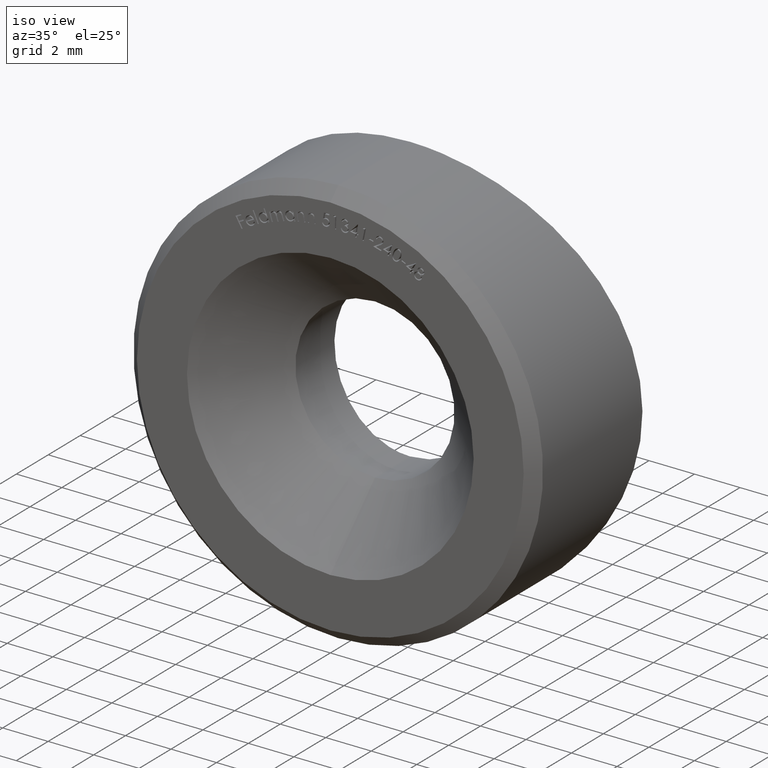
[diagram: clean part render]
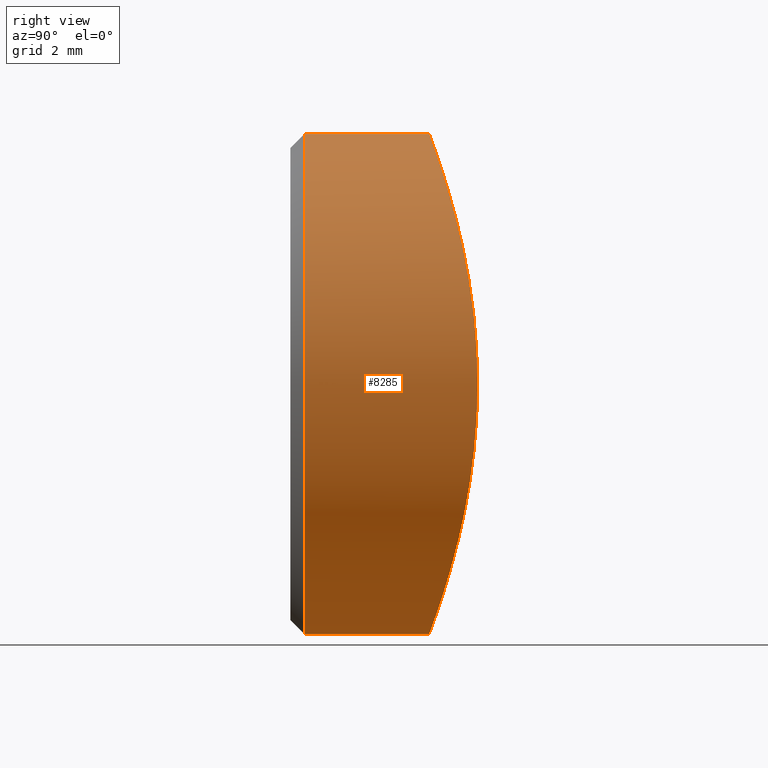
[diagram: tour spotlight — one face highlighted and labeled with its STEP entity id]
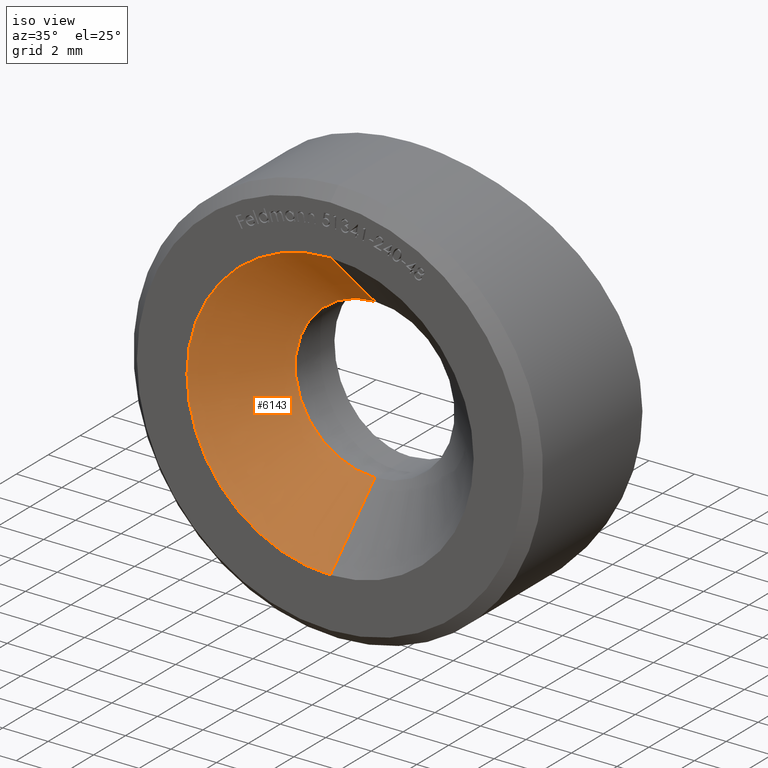
[diagram: tour spotlight — one face highlighted and labeled with its STEP entity id]
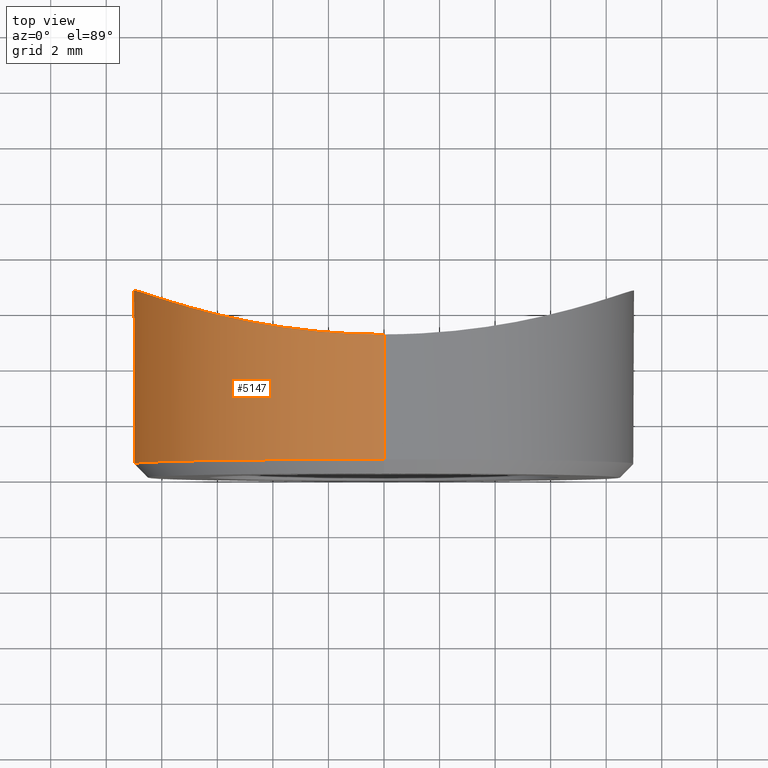
[diagram: tour spotlight — one face highlighted and labeled with its STEP entity id]
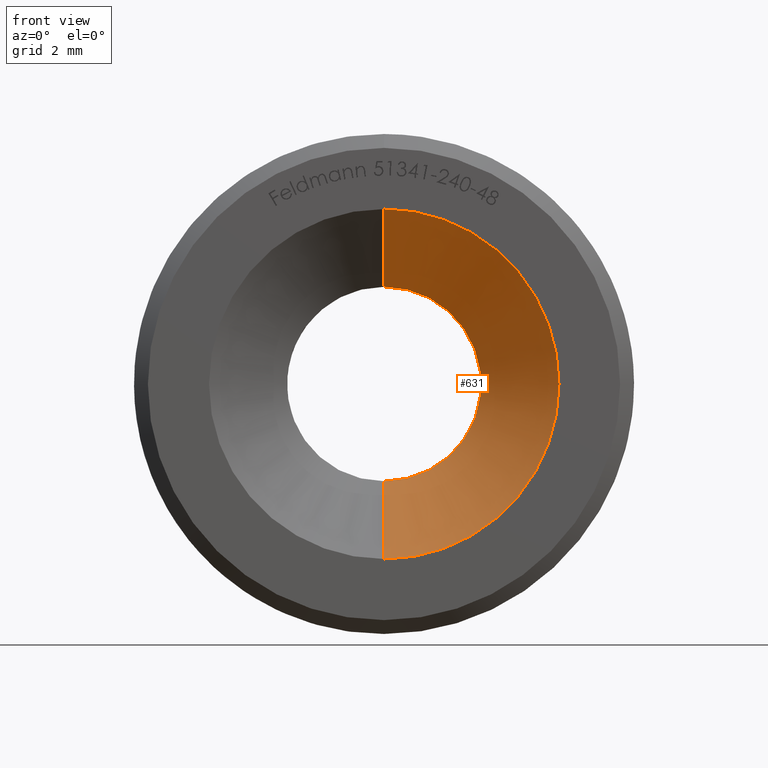
[diagram: tour spotlight — one face highlighted and labeled with its STEP entity id]
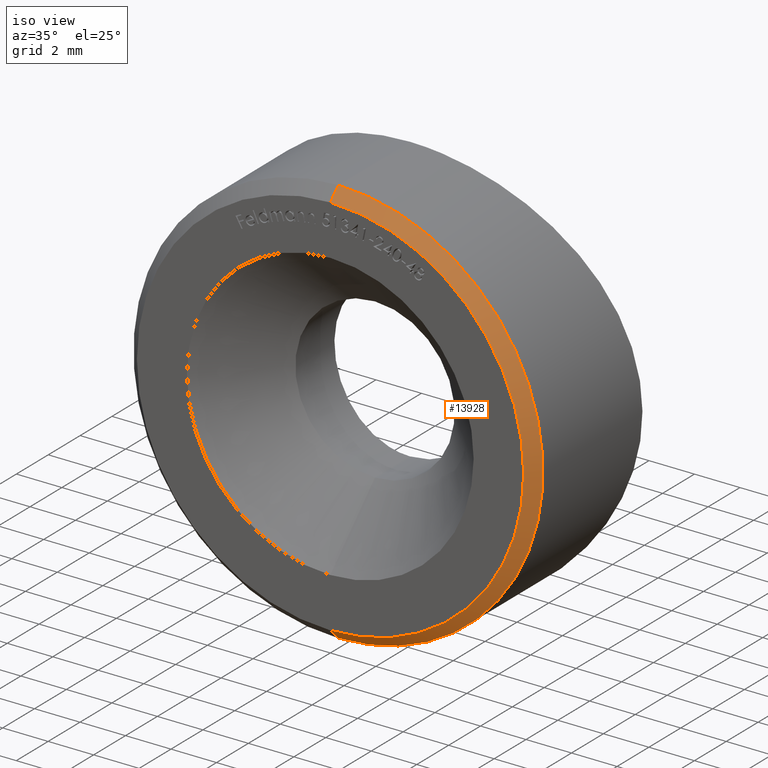
[diagram: tour spotlight — one face highlighted and labeled with its STEP entity id]
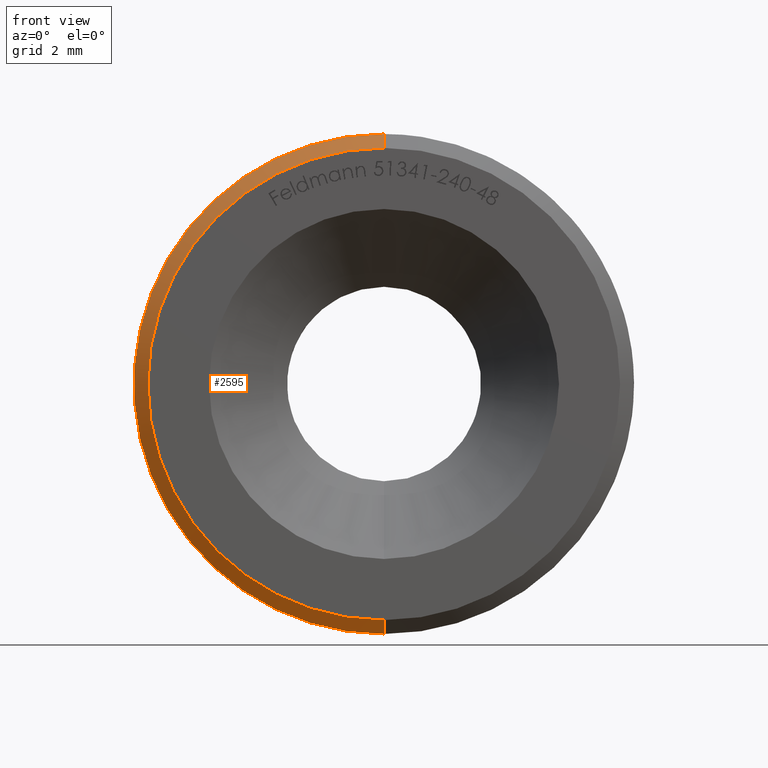
[diagram: tour spotlight — one face highlighted and labeled with its STEP entity id]
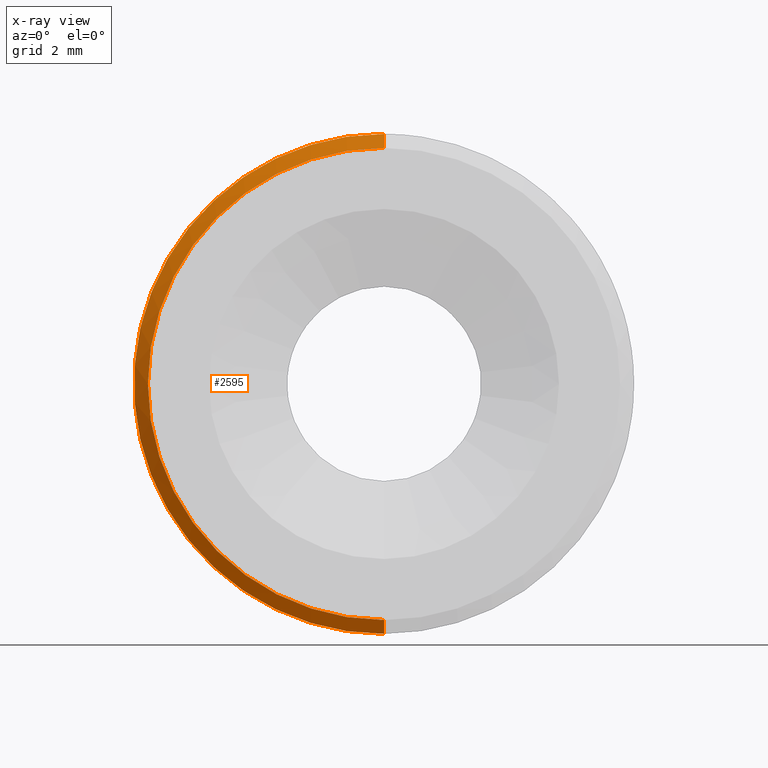
[diagram: x-ray of the same camera — body ghosted, this tour face saturated]
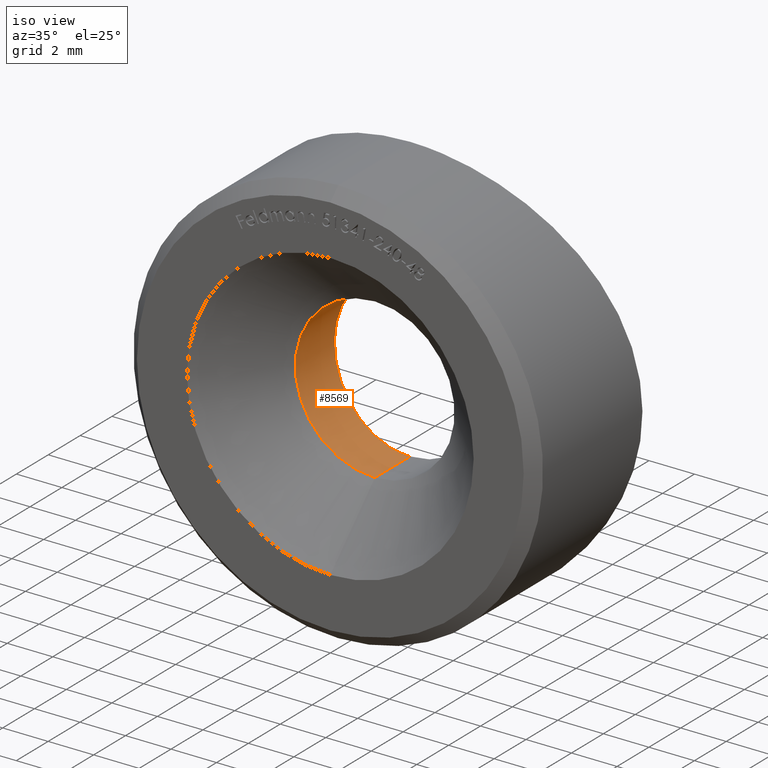
[diagram: tour spotlight — one face highlighted and labeled with its STEP entity id]
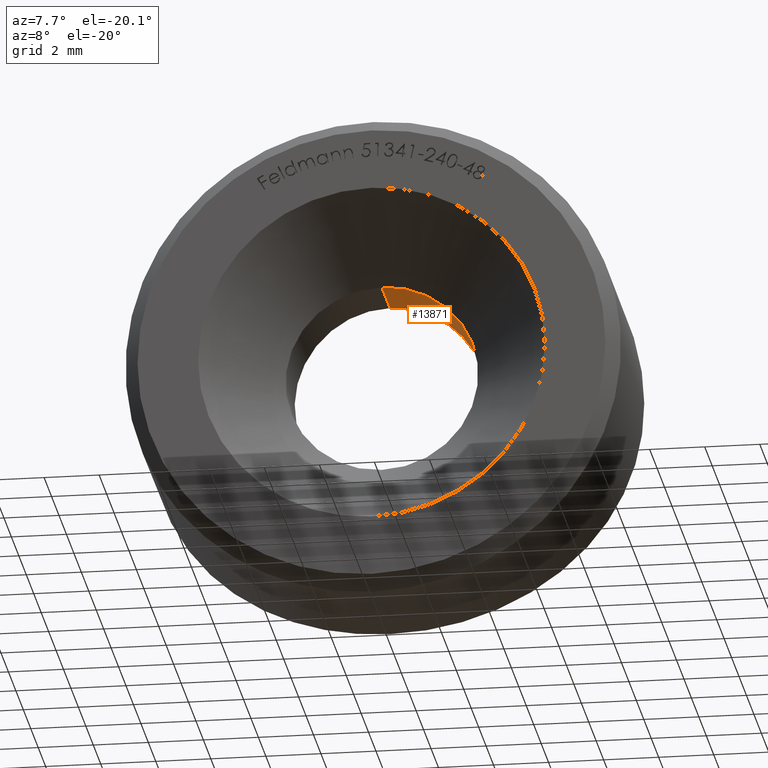
[diagram: tour spotlight — one face highlighted and labeled with its STEP entity id]
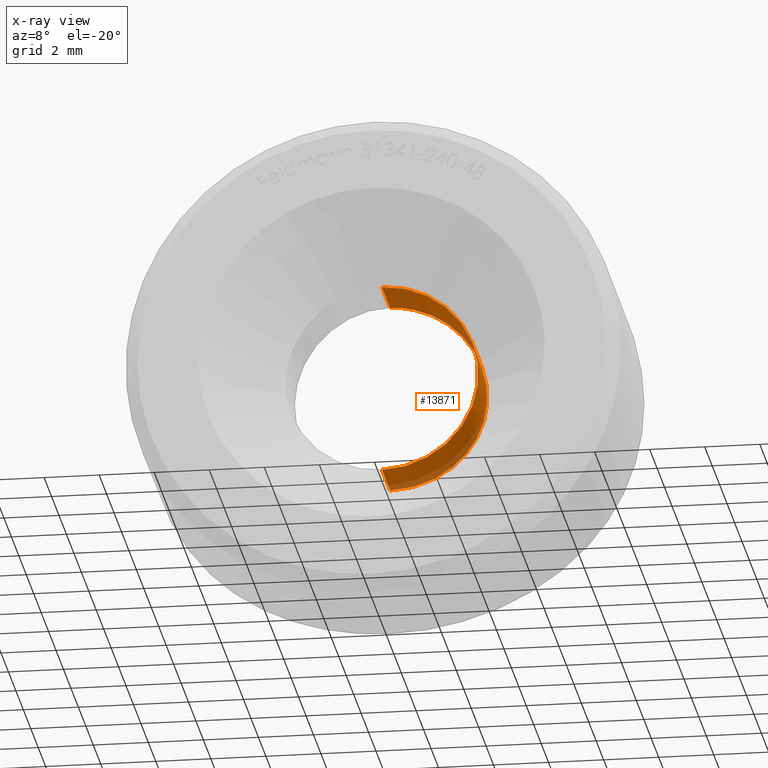
[diagram: x-ray of the same camera — body ghosted, this tour face saturated]
A machine part: a face-by-face anatomy tour. The part has 269 B-rep faces; the first image is the clean iso view, then the 8 largest visible faces are spotlighted one at a time (largest first), each with its STEP entity span.

Face 1 — right view, entity #8285. In plain terms, the highlighted cylindrical surface (partial cylindrical patch) has radius 9 mm, axis along (-0, -1, -0).
Definition (entity closure, byte-faithful):
#43 = CARTESIAN_POINT ( 'NONE',  ( 6.766301774490943721, 5.966438062128760933, 5.941660417136055194 ) ) ;
#86 = CARTESIAN_POINT ( 'NONE',  ( 1.189931978272880553, 5.022348093053088824, -8.940511629160912577 ) ) ;
#126 = CARTESIAN_POINT ( 'NONE',  ( 3.730642141973565362, 5.288323360965939024, 8.195625848962068360 ) ) ;
#136 = CARTESIAN_POINT ( 'NONE',  ( 0.000000000000000000, 12.00000000000000000, 0.000000000000000000 ) ) ;
#172 = CARTESIAN_POINT ( 'NONE',  ( 8.536001020903137615, 6.557558804517533702, 2.913676522241372080 ) ) ;
#221 = CARTESIAN_POINT ( 'NONE',  ( 5.948497826203598571, 5.740148624107844988, 6.779100985596852702 ) ) ;
#296 = VERTEX_POINT ( 'NONE', #8079 ) ;
#837 = VERTEX_POINT ( 'NONE', #9467 ) ;
#1125 = CARTESIAN_POINT ( 'NONE',  ( 2.356297262068391962, 5.108076488007558424, 8.706521532603355595 ) ) ;
#1171 = CARTESIAN_POINT ( 'NONE',  ( 4.010451670207712205, 5.328982301794197518, -8.078595244542672305 ) ) ;
#1263 = CARTESIAN_POINT ( 'NONE',  ( 7.800711955355153826, 6.292000575243805294, 4.526518712630223540 ) ) ;
#1307 = CARTESIAN_POINT ( 'NONE',  ( 8.985576648985063031, 6.733869077884507170, 0.5907930680414021918 ) ) ;
#2324 = CARTESIAN_POINT ( 'NONE',  ( 0.6004972753266772934, 5.000000000000000888, -9.000000000000001776 ) ) ;
#2371 = CARTESIAN_POINT ( 'NONE',  ( 2.918603597515133430, 5.170770147693574792, 8.533794491968329510 ) ) ;
#3112 = DIRECTION ( 'NONE',  ( -0.000000000000000000, -1.000000000000000000, -0.000000000000000000 ) ) ;
#3270 = CARTESIAN_POINT ( 'NONE',  ( 0.5913067879176026054, 5.005429957612480329, 8.985460498500561499 ) ) ;
#3310 = CARTESIAN_POINT ( 'NONE',  ( 8.081853343882659857, 6.391184537251258568, -4.003282572079447377 ) ) ;
#3318 = CARTESIAN_POINT ( 'NONE',  ( -4.568409212504892673E-16, 5.000000000000000888, -9.000000000000000000 ) ) ;
#3402 = CARTESIAN_POINT ( 'NONE',  ( 8.999669348356471588, 6.739545927265237601, -0.5981784187333814007 ) ) ;
#3439 = CARTESIAN_POINT ( 'NONE',  ( 7.313367644689345859, 6.133346466704702848, 5.253548644503456266 ) ) ;
#3735 = CARTESIAN_POINT ( 'NONE',  ( 1.102182119232617714E-15, 12.00000000000000000, 9.000000000000000000 ) ) ;
#4238 = ORIENTED_EDGE ( 'NONE', *, *, #12728, .T. ) ;
#4284 = EDGE_CURVE ( 'NONE', #9323, #296, #11903, .T. ) ;
#4338 = CARTESIAN_POINT ( 'NONE',  ( 3.194525826999539131, 5.210638449721360033, -8.419136575189154925 ) ) ;
#4482 = CARTESIAN_POINT ( 'NONE',  ( 8.926453623067843068, 6.710259828878878174, 1.186612775613984816 ) ) ;
#4532 = CARTESIAN_POINT ( 'NONE',  ( 1.479248365717241498, 5.043564033469090546, 8.882608725411273554 ) ) ;
#4908 = VERTEX_POINT ( 'NONE', #3318 ) ;
#5332 = DIRECTION ( 'NONE',  ( -0.000000000000000000, 1.000000000000000000, -0.000000000000000000 ) ) ;
#5382 = CARTESIAN_POINT ( 'NONE',  ( 0.000000000000000000, 0.5000000000000056621, 0.000000000000000000 ) ) ;
#5402 = CARTESIAN_POINT ( 'NONE',  ( 8.882333141340604143, 6.692694759381613068, 1.480380367045336376 ) ) ;
#5436 = FACE_OUTER_BOUND ( 'NONE', #6497, .T. ) ;
#5444 = CARTESIAN_POINT ( 'NONE',  ( 8.766325330730728282, 6.647156515768875451, -2.059044539219177850 ) ) ;
#5487 = CARTESIAN_POINT ( 'NONE',  ( 8.419693707027636975, 6.514946618911880094, -3.192869255986672261 ) ) ;
#5529 = CARTESIAN_POINT ( 'NONE',  ( 5.946319130245044882, 5.742351645721429421, -6.762184475230791136 ) ) ;
#5541 = DIRECTION ( 'NONE',  ( 0.000000000000000000, 0.000000000000000000, -1.000000000000000000 ) ) ;
#5580 = CARTESIAN_POINT ( 'NONE',  ( 2.058400223355762559, 5.086131967524055497, -8.766422308816089526 ) ) ;
#6472 = CARTESIAN_POINT ( 'NONE',  ( 5.493897798609819638, 5.632053668427838389, -7.134629426550527675 ) ) ;
#6497 = EDGE_LOOP ( 'NONE', ( #9907, #4238, #11561, #13808 ) ) ;
#6561 = AXIS2_PLACEMENT_3D ( 'NONE', #5382, #5332, #12826 ) ;
#6563 = CARTESIAN_POINT ( 'NONE',  ( 7.149385831907496325, 6.079933614271139319, -5.498565882711247355 ) ) ;
#6607 = CARTESIAN_POINT ( 'NONE',  ( 8.707921944808472148, 6.624232572021480081, 2.349801621985683653 ) ) ;
#6649 = CARTESIAN_POINT ( 'NONE',  ( 3.996045804814440050, 5.331437314496267454, 8.069618638804834987 ) ) ;
#7239 = LINE ( 'NONE', #3735, #13632 ) ;
#7457 = B_SPLINE_CURVE_WITH_KNOTS ( 'NONE', 3,
 ( #11688, #2324, #86, #5580, #8707, #10809, #4338, #1171, #7728, #7679, #6472, #5529, #10941, #11915, #6563, #11968, #3310, #5487, #9836, #8749, #5444, #12986, #3402, #13025, #1307, #4482, #5402, #6607, #172, #7592, #1263, #3439, #12010, #43, #13069, #221, #11873, #8796, #7545, #6649, #126, #2371, #1125, #4532, #9888, #3270, #12936, #7638 ),
 .UNSPECIFIED., .F., .F.,
 ( 4, 2, 2, 2, 2, 2, 2, 2, 2, 2, 2, 2, 2, 2, 2, 2, 2, 2, 2, 2, 2, 2, 2, 4 ),
 ( 4.434022887424222279E-19, 0.001774797310187747066, 0.002662195965281620707, 0.003549594620375494999, 0.005324391930563244883, 0.006211790585657120042, 0.007099189240750995201, 0.008873986550938742918, 0.01064878386112649324, 0.01153618251622036753, 0.01242358117131424355, 0.01419837848150199040, 0.01508577713659586469, 0.01597317579168973725, 0.01774797310187748237, 0.01952277041206523095, 0.02041016906715910351, 0.02129756772225297606, 0.02307236503244072465, 0.02395976368753459720, 0.02484716234262846976, 0.02662195965281621488, 0.02750935830791009090, 0.02839675696300396346 ),
 .UNSPECIFIED. ) ;
#7545 = CARTESIAN_POINT ( 'NONE',  ( 4.516208075080093032, 5.424566914384318927, 7.790442328424158625 ) ) ;
#7592 = CARTESIAN_POINT ( 'NONE',  ( 8.079029420259553618, 6.390145074566638606, 4.010250357733377236 ) ) ;
#7638 = CARTESIAN_POINT ( 'NONE',  ( 1.102514962508102524E-15, 5.000000000000000888, 9.000000000000000000 ) ) ;
#7679 = CARTESIAN_POINT ( 'NONE',  ( 5.256306602870696842, 5.577648519928660953, -7.311447858672172728 ) ) ;
#7728 = CARTESIAN_POINT ( 'NONE',  ( 4.525502325701673101, 5.422581634031855558, -7.801534738365574206 ) ) ;
#8079 = CARTESIAN_POINT ( 'NONE',  ( 0.000000000000000000, 0.5000000000000056621, -9.000000000000000000 ) ) ;
#8285 = ADVANCED_FACE ( 'NONE', ( #5436 ), #9115, .T. ) ;
#8707 = CARTESIAN_POINT ( 'NONE',  ( 2.345257186480904199, 5.112445985352649380, -8.694140061495708949 ) ) ;
#8749 = CARTESIAN_POINT ( 'NONE',  ( 8.692783407527976181, 6.618541706277722980, -2.350144712454297569 ) ) ;
#8770 = LINE ( 'NONE', #13830, #13833 ) ;
#8796 = CARTESIAN_POINT ( 'NONE',  ( 4.770135947871413151, 5.474483797871056545, 7.637505743970503858 ) ) ;
#8845 = EDGE_CURVE ( 'NONE', #4908, #296, #8770, .T. ) ;
#9115 = CYLINDRICAL_SURFACE ( 'NONE', #10233, 9.000000000000000000 ) ;
#9323 = VERTEX_POINT ( 'NONE', #9390 ) ;
#9390 = CARTESIAN_POINT ( 'NONE',  ( 1.102182119232617714E-15, 0.5000000000000056621, 9.000000000000000000 ) ) ;
#9467 = CARTESIAN_POINT ( 'NONE',  ( 1.102514962508102524E-15, 5.000000000000000888, 9.000000000000000000 ) ) ;
#9836 = CARTESIAN_POINT ( 'NONE',  ( 8.519525881940021250, 6.552460864977041943, -2.916391998107375372 ) ) ;
#9888 = CARTESIAN_POINT ( 'NONE',  ( 1.182199006767078675, 5.027141302126042710, 8.926956345583322516 ) ) ;
#9903 = DIRECTION ( 'NONE',  ( -0.000000000000000000, -1.000000000000000000, -0.000000000000000000 ) ) ;
#9907 = ORIENTED_EDGE ( 'NONE', *, *, #11664, .T. ) ;
#10233 = AXIS2_PLACEMENT_3D ( 'NONE', #136, #9903, #5541 ) ;
#10809 = CARTESIAN_POINT ( 'NONE',  ( 2.913642026638510796, 5.174701786663108649, -8.520504258566555578 ) ) ;
#10941 = CARTESIAN_POINT ( 'NONE',  ( 6.161984158437130432, 5.798387163505403841, -6.566161547331820003 ) ) ;
#11283 = DIRECTION ( 'NONE',  ( -0.000000000000000000, -1.000000000000000000, -0.000000000000000000 ) ) ;
#11561 = ORIENTED_EDGE ( 'NONE', *, *, #4284, .T. ) ;
#11664 = EDGE_CURVE ( 'NONE', #4908, #837, #7457, .T. ) ;
#11688 = CARTESIAN_POINT ( 'NONE',  ( -4.568409212504892673E-16, 5.000000000000000888, -9.000000000000000000 ) ) ;
#11873 = CARTESIAN_POINT ( 'NONE',  ( 5.499467987954579584, 5.629255763406552759, 7.148329570668463084 ) ) ;
#11903 = CIRCLE ( 'NONE', #6561, 9.000000000000000000 ) ;
#11915 = CARTESIAN_POINT ( 'NONE',  ( 6.778385586350903935, 5.966870957952460586, -5.949083440388699628 ) ) ;
#11968 = CARTESIAN_POINT ( 'NONE',  ( 7.805905791461426269, 6.293720434194779223, -4.518382378111074793 ) ) ;
#12010 = CARTESIAN_POINT ( 'NONE',  ( 7.139095839518596165, 6.078509055009910789, 5.488121610369887549 ) ) ;
#12728 = EDGE_CURVE ( 'NONE', #837, #9323, #7239, .T. ) ;
#12826 = DIRECTION ( 'NONE',  ( 0.000000000000000000, 0.000000000000000000, 1.000000000000000000 ) ) ;
#12936 = CARTESIAN_POINT ( 'NONE',  ( 0.2957220144155063291, 5.000000000000000888, 9.000000000000000000 ) ) ;
#12986 = CARTESIAN_POINT ( 'NONE',  ( 8.941270364255451852, 6.715832242016529285, -1.185825091691509847 ) ) ;
#13025 = CARTESIAN_POINT ( 'NONE',  ( 9.000163246037892861, 6.739744276868593786, 0.2915956014156583787 ) ) ;
#13069 = CARTESIAN_POINT ( 'NONE',  ( 6.567965725016922995, 5.909299855804041712, 6.160116506635262112 ) ) ;
#13632 = VECTOR ( 'NONE', #11283, 1000.000000000000000 ) ;
#13808 = ORIENTED_EDGE ( 'NONE', *, *, #8845, .F. ) ;
#13830 = CARTESIAN_POINT ( 'NONE',  ( 0.000000000000000000, 12.00000000000000000, -9.000000000000000000 ) ) ;
#13833 = VECTOR ( 'NONE', #3112, 1000.000000000000000 ) ;

Face 2 — iso view, entity #6143. In plain terms, the highlighted conical surface has half-angle 45 deg.
Definition (entity closure, byte-faithful):
#165 = EDGE_LOOP ( 'NONE', ( #6391, #9433, #12248, #319 ) ) ;
#319 = ORIENTED_EDGE ( 'NONE', *, *, #9780, .F. ) ;
#735 = DIRECTION ( 'NONE',  ( 8.659560562354936556E-17, -0.7071067811865473507, 0.7071067811865477948 ) ) ;
#952 = CONICAL_SURFACE ( 'NONE', #2604, 6.299999999999999822, 0.7853981633974485010 ) ;
#1234 = CARTESIAN_POINT ( 'NONE',  ( 0.000000000000000000, 2.799999999999997602, -3.500000000000000000 ) ) ;
#1496 = EDGE_CURVE ( 'NONE', #10953, #4129, #2839, .T. ) ;
#1762 = DIRECTION ( 'NONE',  ( 0.000000000000000000, 0.000000000000000000, -1.000000000000000000 ) ) ;
#2604 = AXIS2_PLACEMENT_3D ( 'NONE', #12688, #9411, #8412 ) ;
#2706 = CARTESIAN_POINT ( 'NONE',  ( 0.000000000000000000, 2.799999999999997602, 0.000000000000000000 ) ) ;
#2839 = LINE ( 'NONE', #12509, #6864 ) ;
#3629 = EDGE_CURVE ( 'NONE', #10953, #8145, #13068, .T. ) ;
#4129 = VERTEX_POINT ( 'NONE', #12546 ) ;
#4422 = CARTESIAN_POINT ( 'NONE',  ( 0.000000000000000000, -8.673617379884035472E-16, 0.000000000000000000 ) ) ;
#4583 = DIRECTION ( 'NONE',  ( 0.000000000000000000, -0.7071067811865473507, -0.7071067811865477948 ) ) ;
#4667 = AXIS2_PLACEMENT_3D ( 'NONE', #2706, #12373, #1762 ) ;
#4981 = FACE_OUTER_BOUND ( 'NONE', #165, .T. ) ;
#5201 = CARTESIAN_POINT ( 'NONE',  ( 0.000000000000000000, -8.673617379884035472E-16, -6.299999999999999822 ) ) ;
#5517 = DIRECTION ( 'NONE',  ( 0.000000000000000000, 0.000000000000000000, -1.000000000000000000 ) ) ;
#5865 = CARTESIAN_POINT ( 'NONE',  ( 0.000000000000000000, -8.673617379884035472E-16, -6.299999999999999822 ) ) ;
#6143 = ADVANCED_FACE ( 'NONE', ( #4981 ), #952, .F. ) ;
#6391 = ORIENTED_EDGE ( 'NONE', *, *, #3629, .F. ) ;
#6496 = CARTESIAN_POINT ( 'NONE',  ( 4.286263797015735609E-16, 2.799999999999997602, 3.500000000000000000 ) ) ;
#6864 = VECTOR ( 'NONE', #735, 999.9999999999998863 ) ;
#7386 = VERTEX_POINT ( 'NONE', #5201 ) ;
#7622 = EDGE_CURVE ( 'NONE', #4129, #7386, #11194, .T. ) ;
#8145 = VERTEX_POINT ( 'NONE', #1234 ) ;
#8412 = DIRECTION ( 'NONE',  ( 0.000000000000000000, 0.000000000000000000, -1.000000000000000000 ) ) ;
#9118 = VECTOR ( 'NONE', #4583, 999.9999999999998863 ) ;
#9411 = DIRECTION ( 'NONE',  ( -0.000000000000000000, -1.000000000000000000, -0.000000000000000000 ) ) ;
#9433 = ORIENTED_EDGE ( 'NONE', *, *, #1496, .T. ) ;
#9674 = AXIS2_PLACEMENT_3D ( 'NONE', #4422, #11955, #5517 ) ;
#9780 = EDGE_CURVE ( 'NONE', #8145, #7386, #11826, .T. ) ;
#10953 = VERTEX_POINT ( 'NONE', #6496 ) ;
#11194 = CIRCLE ( 'NONE', #9674, 6.299999999999999822 ) ;
#11826 = LINE ( 'NONE', #5865, #9118 ) ;
#11955 = DIRECTION ( 'NONE',  ( -0.000000000000000000, -1.000000000000000000, -0.000000000000000000 ) ) ;
#12248 = ORIENTED_EDGE ( 'NONE', *, *, #7622, .T. ) ;
#12373 = DIRECTION ( 'NONE',  ( -0.000000000000000000, -1.000000000000000000, -0.000000000000000000 ) ) ;
#12509 = CARTESIAN_POINT ( 'NONE',  ( 7.715274834628325378E-16, -8.673617379884035472E-16, 6.299999999999999822 ) ) ;
#12546 = CARTESIAN_POINT ( 'NONE',  ( 7.715274834628325378E-16, -8.673617379884035472E-16, 6.299999999999999822 ) ) ;
#12688 = CARTESIAN_POINT ( 'NONE',  ( 0.000000000000000000, -8.673617379884035472E-16, 0.000000000000000000 ) ) ;
#13068 = CIRCLE ( 'NONE', #4667, 3.500000000000000000 ) ;

Face 3 — top view, entity #5147. In plain terms, the highlighted cylindrical surface (partial cylindrical patch) has radius 9 mm, axis along (-0, -1, -0).
Definition (entity closure, byte-faithful):
#60 = CARTESIAN_POINT ( 'NONE',  ( -1.183329134015081774, 5.027190693355761297, 8.926823075102856109 ) ) ;
#88 = CIRCLE ( 'NONE', #3725, 9.000000000000000000 ) ;
#141 = CARTESIAN_POINT ( 'NONE',  ( -2.340176281273871339, 5.111969399031489836, -8.695451452460018160 ) ) ;
#189 = CARTESIAN_POINT ( 'NONE',  ( -4.521105206561896850, 5.421795849348660212, -7.803838536955937322 ) ) ;
#296 = VERTEX_POINT ( 'NONE', #8079 ) ;
#837 = VERTEX_POINT ( 'NONE', #9467 ) ;
#1054 = CARTESIAN_POINT ( 'NONE',  ( -4.003473065095126238, 5.332683468086962364, 8.065945413080921611 ) ) ;
#1140 = CARTESIAN_POINT ( 'NONE',  ( -8.941453823396274814, 6.715902483883970042, -1.185415833321648682 ) ) ;
#1189 = CARTESIAN_POINT ( 'NONE',  ( -8.536403297860468697, 6.557731683690119162, 2.911713563124727067 ) ) ;
#1497 = ORIENTED_EDGE ( 'NONE', *, *, #12728, .F. ) ;
#1942 = ORIENTED_EDGE ( 'NONE', *, *, #7304, .T. ) ;
#2114 = CARTESIAN_POINT ( 'NONE',  ( 1.102514962508102524E-15, 5.000000000000000888, 9.000000000000000000 ) ) ;
#2159 = CARTESIAN_POINT ( 'NONE',  ( -0.5914565929828755619, 5.005427612344263366, 8.985466996890860258 ) ) ;
#2253 = CARTESIAN_POINT ( 'NONE',  ( -8.692250110182662581, 6.618336176308982743, -2.352073541309767979 ) ) ;
#2291 = CARTESIAN_POINT ( 'NONE',  ( -5.248278084449464309, 5.575872905360110821, -7.317147613531339800 ) ) ;
#3112 = DIRECTION ( 'NONE',  ( -0.000000000000000000, -1.000000000000000000, -0.000000000000000000 ) ) ;
#3318 = CARTESIAN_POINT ( 'NONE',  ( -4.568409212504892673E-16, 5.000000000000000888, -9.000000000000000000 ) ) ;
#3323 = CARTESIAN_POINT ( 'NONE',  ( -8.067113009859918193, 6.386741739489055547, -4.001031466107890289 ) ) ;
#3373 = CARTESIAN_POINT ( 'NONE',  ( -4.568409212504892673E-16, 5.000000000000000888, -9.000000000000000000 ) ) ;
#3725 = AXIS2_PLACEMENT_3D ( 'NONE', #9183, #5974, #12427 ) ;
#3735 = CARTESIAN_POINT ( 'NONE',  ( 1.102182119232617714E-15, 12.00000000000000000, 9.000000000000000000 ) ) ;
#4266 = CARTESIAN_POINT ( 'NONE',  ( -8.068570073650969121, 6.387260088954036519, 3.998064512460949516 ) ) ;
#4306 = CARTESIAN_POINT ( 'NONE',  ( -3.735175235093165291, 5.289018126450486079, 8.193610612220972200 ) ) ;
#4356 = CARTESIAN_POINT ( 'NONE',  ( -8.519087633289135653, 6.552295856920835604, -2.917637369180766882 ) ) ;
#4806 = ORIENTED_EDGE ( 'NONE', *, *, #8097, .T. ) ;
#4908 = VERTEX_POINT ( 'NONE', #3318 ) ;
#5050 = DIRECTION ( 'NONE',  ( 0.000000000000000000, 0.000000000000000000, -1.000000000000000000 ) ) ;
#5147 = ADVANCED_FACE ( 'NONE', ( #7848 ), #8676, .T. ) ;
#5325 = CARTESIAN_POINT ( 'NONE',  ( -7.639986452855445087, 6.239693816090897904, 4.766062746791963178 ) ) ;
#5367 = CARTESIAN_POINT ( 'NONE',  ( -7.788572087120195775, 6.289939112235443552, -4.519370525899456759 ) ) ;
#5420 = CARTESIAN_POINT ( 'NONE',  ( -5.502058311792015211, 5.629892113178493140, 7.146212023275231751 ) ) ;
#5504 = CARTESIAN_POINT ( 'NONE',  ( -5.937721058920703676, 5.740158384107552081, -6.769781015560517368 ) ) ;
#5974 = DIRECTION ( 'NONE',  ( -0.000000000000000000, 1.000000000000000000, -0.000000000000000000 ) ) ;
#6403 = CARTESIAN_POINT ( 'NONE',  ( -8.707815035762678235, 6.624191690949310818, 2.350026375780960741 ) ) ;
#6451 = CARTESIAN_POINT ( 'NONE',  ( -6.775119179731515118, 5.965881041472392177, -5.953015199997138573 ) ) ;
#6487 = CARTESIAN_POINT ( 'NONE',  ( -7.154026142719529524, 6.081439149561167490, 5.491711789048739689 ) ) ;
#6528 = CARTESIAN_POINT ( 'NONE',  ( -5.952386718994914006, 5.741081429621911703, 6.776094972537955563 ) ) ;
#6580 = CARTESIAN_POINT ( 'NONE',  ( -2.905460920870345021, 5.173727624215006315, -8.523238693526133503 ) ) ;
#6595 = EDGE_LOOP ( 'NONE', ( #1497, #4806, #10120, #1942 ) ) ;
#6621 = CARTESIAN_POINT ( 'NONE',  ( -0.6003707521603153241, 5.000000000000000000, -8.999999999999996447 ) ) ;
#7017 = B_SPLINE_CURVE_WITH_KNOTS ( 'NONE', 3,
 ( #2114, #11845, #2159, #60, #8591, #10826, #7612, #4306, #1054, #9671, #9632, #5420, #6528, #11750, #6487, #5325, #9584, #4266, #12903, #1189, #6403, #12815, #10734, #7564, #1140, #11801, #2253, #4356, #11885, #9769, #3323, #5367, #10864, #12857, #6451, #11935, #5504, #13038, #2291, #189, #12999, #7652, #6580, #141, #9812, #10907, #6621, #3373 ),
 .UNSPECIFIED., .F., .F.,
 ( 4, 2, 2, 2, 2, 2, 2, 2, 2, 2, 2, 2, 2, 2, 2, 2, 2, 2, 2, 2, 2, 2, 2, 4 ),
 ( 0.02839675696300396346, 0.02928396864557975682, 0.03017118032815555018, 0.03194560369330713689, 0.03283281537588293025, 0.03372002705845872361, 0.03549445042361030339, 0.03726887378876188317, 0.03815608547133767653, 0.03904329715391346295, 0.04081772051906504273, 0.04259214388421662251, 0.04436656724936820229, 0.04525377893194399564, 0.04614099061451978900, 0.04702820229709558236, 0.04791541397967136878, 0.04968983734482294856, 0.05057704902739873498, 0.05146426070997452140, 0.05323868407512610812, 0.05412589575770189454, 0.05501310744027768790, 0.05678753080542926768 ),
 .UNSPECIFIED. ) ;
#7239 = LINE ( 'NONE', #3735, #13632 ) ;
#7304 = EDGE_CURVE ( 'NONE', #296, #9323, #88, .T. ) ;
#7564 = CARTESIAN_POINT ( 'NONE',  ( -8.999755737264111488, 6.739580621094140689, -0.5968263228428755118 ) ) ;
#7612 = CARTESIAN_POINT ( 'NONE',  ( -2.919431552850918266, 5.170813620244211428, 8.533702304066625999 ) ) ;
#7652 = CARTESIAN_POINT ( 'NONE',  ( -3.186881145416057048, 5.209605309870319445, -8.422076941649054405 ) ) ;
#7848 = FACE_OUTER_BOUND ( 'NONE', #6595, .T. ) ;
#8079 = CARTESIAN_POINT ( 'NONE',  ( 0.000000000000000000, 0.5000000000000056621, -9.000000000000000000 ) ) ;
#8097 = EDGE_CURVE ( 'NONE', #837, #4908, #7017, .T. ) ;
#8266 = CARTESIAN_POINT ( 'NONE',  ( 0.000000000000000000, 12.00000000000000000, 0.000000000000000000 ) ) ;
#8591 = CARTESIAN_POINT ( 'NONE',  ( -1.481043561356632399, 5.043681750137372077, 8.882288776165831123 ) ) ;
#8676 = CYLINDRICAL_SURFACE ( 'NONE', #12582, 9.000000000000000000 ) ;
#8770 = LINE ( 'NONE', #13830, #13833 ) ;
#8845 = EDGE_CURVE ( 'NONE', #4908, #296, #8770, .T. ) ;
#9183 = CARTESIAN_POINT ( 'NONE',  ( 0.000000000000000000, 0.5000000000000056621, 0.000000000000000000 ) ) ;
#9323 = VERTEX_POINT ( 'NONE', #9390 ) ;
#9390 = CARTESIAN_POINT ( 'NONE',  ( 1.102182119232617714E-15, 0.5000000000000056621, 9.000000000000000000 ) ) ;
#9467 = CARTESIAN_POINT ( 'NONE',  ( 1.102514962508102524E-15, 5.000000000000000888, 9.000000000000000000 ) ) ;
#9584 = CARTESIAN_POINT ( 'NONE',  ( -7.790598671275304810, 6.290631600272409862, 4.515851550077695009 ) ) ;
#9632 = CARTESIAN_POINT ( 'NONE',  ( -4.774876607195988498, 5.475447025243049382, 7.634513826894496979 ) ) ;
#9671 = CARTESIAN_POINT ( 'NONE',  ( -4.523802866348018092, 5.426012751000270917, 7.786043900220751546 ) ) ;
#9769 = CARTESIAN_POINT ( 'NONE',  ( -8.193174565849572488, 6.431970352948139791, -3.736042967627632549 ) ) ;
#9812 = CARTESIAN_POINT ( 'NONE',  ( -2.054615449980188302, 5.085820954257313176, -8.767274289889023464 ) ) ;
#10120 = ORIENTED_EDGE ( 'NONE', *, *, #8845, .T. ) ;
#10734 = CARTESIAN_POINT ( 'NONE',  ( -9.000242745846994907, 6.739776204047270625, 0.5894366003947584254 ) ) ;
#10826 = CARTESIAN_POINT ( 'NONE',  ( -2.356244374972195299, 5.108101347385321844, 8.706450952067763538 ) ) ;
#10864 = CARTESIAN_POINT ( 'NONE',  ( -7.635387197543335169, 6.238148970356925282, -4.773559240343062449 ) ) ;
#10907 = CARTESIAN_POINT ( 'NONE',  ( -1.189229276166026805, 5.022363047738294561, -8.940464541314122826 ) ) ;
#11283 = DIRECTION ( 'NONE',  ( -0.000000000000000000, -1.000000000000000000, -0.000000000000000000 ) ) ;
#11750 = CARTESIAN_POINT ( 'NONE',  ( -6.784134906272424992, 5.968457992174998061, 5.943221710723668672 ) ) ;
#11801 = CARTESIAN_POINT ( 'NONE',  ( -8.765789913851866899, 6.646947226079618964, -2.061462825196511250 ) ) ;
#11845 = CARTESIAN_POINT ( 'NONE',  ( -0.2956597065797095802, 5.000000000000000888, 9.000000000000000000 ) ) ;
#11885 = CARTESIAN_POINT ( 'NONE',  ( -8.419161607425420968, 6.514746558987560832, -3.194345684251792772 ) ) ;
#11935 = CARTESIAN_POINT ( 'NONE',  ( -6.155921192607373804, 5.796779403771975758, -6.571894075390146028 ) ) ;
#12427 = DIRECTION ( 'NONE',  ( 0.000000000000000000, 0.000000000000000000, 1.000000000000000000 ) ) ;
#12582 = AXIS2_PLACEMENT_3D ( 'NONE', #8266, #12636, #5050 ) ;
#12636 = DIRECTION ( 'NONE',  ( -0.000000000000000000, -1.000000000000000000, -0.000000000000000000 ) ) ;
#12728 = EDGE_CURVE ( 'NONE', #837, #9323, #7239, .T. ) ;
#12815 = CARTESIAN_POINT ( 'NONE',  ( -8.940213877409806997, 6.715413788096719294, 1.192158752050187065 ) ) ;
#12857 = CARTESIAN_POINT ( 'NONE',  ( -7.144943962554036965, 6.078578352953130981, -5.503980167284034053 ) ) ;
#12903 = CARTESIAN_POINT ( 'NONE',  ( -8.196428865278479137, 6.433142358781325676, 3.729023751705212053 ) ) ;
#12999 = CARTESIAN_POINT ( 'NONE',  ( -4.006517972124378879, 5.328263053340628552, -8.080728898020559825 ) ) ;
#13038 = CARTESIAN_POINT ( 'NONE',  ( -5.483159368082304752, 5.629537011382375056, -7.142928651218999114 ) ) ;
#13632 = VECTOR ( 'NONE', #11283, 1000.000000000000000 ) ;
#13830 = CARTESIAN_POINT ( 'NONE',  ( 0.000000000000000000, 12.00000000000000000, -9.000000000000000000 ) ) ;
#13833 = VECTOR ( 'NONE', #3112, 1000.000000000000000 ) ;

Face 4 — front view, entity #631. In plain terms, the highlighted conical surface has half-angle 45 deg.
Definition (entity closure, byte-faithful):
#349 = CIRCLE ( 'NONE', #1986, 6.299999999999999822 ) ;
#631 = ADVANCED_FACE ( 'NONE', ( #11612 ), #5891, .F. ) ;
#735 = DIRECTION ( 'NONE',  ( 8.659560562354936556E-17, -0.7071067811865473507, 0.7071067811865477948 ) ) ;
#1118 = AXIS2_PLACEMENT_3D ( 'NONE', #11281, #12288, #3813 ) ;
#1234 = CARTESIAN_POINT ( 'NONE',  ( 0.000000000000000000, 2.799999999999997602, -3.500000000000000000 ) ) ;
#1496 = EDGE_CURVE ( 'NONE', #10953, #4129, #2839, .T. ) ;
#1959 = AXIS2_PLACEMENT_3D ( 'NONE', #2557, #10026, #3578 ) ;
#1986 = AXIS2_PLACEMENT_3D ( 'NONE', #9337, #9481, #10503 ) ;
#2238 = CIRCLE ( 'NONE', #1959, 3.500000000000000000 ) ;
#2315 = ORIENTED_EDGE ( 'NONE', *, *, #9780, .T. ) ;
#2557 = CARTESIAN_POINT ( 'NONE',  ( 0.000000000000000000, 2.799999999999997602, 0.000000000000000000 ) ) ;
#2839 = LINE ( 'NONE', #12509, #6864 ) ;
#3578 = DIRECTION ( 'NONE',  ( 0.000000000000000000, 0.000000000000000000, -1.000000000000000000 ) ) ;
#3813 = DIRECTION ( 'NONE',  ( 0.000000000000000000, 0.000000000000000000, -1.000000000000000000 ) ) ;
#4129 = VERTEX_POINT ( 'NONE', #12546 ) ;
#4583 = DIRECTION ( 'NONE',  ( 0.000000000000000000, -0.7071067811865473507, -0.7071067811865477948 ) ) ;
#5201 = CARTESIAN_POINT ( 'NONE',  ( 0.000000000000000000, -8.673617379884035472E-16, -6.299999999999999822 ) ) ;
#5865 = CARTESIAN_POINT ( 'NONE',  ( 0.000000000000000000, -8.673617379884035472E-16, -6.299999999999999822 ) ) ;
#5891 = CONICAL_SURFACE ( 'NONE', #1118, 6.299999999999999822, 0.7853981633974485010 ) ;
#6060 = EDGE_LOOP ( 'NONE', ( #7731, #8771, #2315, #10999 ) ) ;
#6496 = CARTESIAN_POINT ( 'NONE',  ( 4.286263797015735609E-16, 2.799999999999997602, 3.500000000000000000 ) ) ;
#6864 = VECTOR ( 'NONE', #735, 999.9999999999998863 ) ;
#7386 = VERTEX_POINT ( 'NONE', #5201 ) ;
#7731 = ORIENTED_EDGE ( 'NONE', *, *, #1496, .F. ) ;
#8145 = VERTEX_POINT ( 'NONE', #1234 ) ;
#8771 = ORIENTED_EDGE ( 'NONE', *, *, #9914, .F. ) ;
#9118 = VECTOR ( 'NONE', #4583, 999.9999999999998863 ) ;
#9337 = CARTESIAN_POINT ( 'NONE',  ( 0.000000000000000000, -8.673617379884035472E-16, 0.000000000000000000 ) ) ;
#9481 = DIRECTION ( 'NONE',  ( -0.000000000000000000, -1.000000000000000000, -0.000000000000000000 ) ) ;
#9780 = EDGE_CURVE ( 'NONE', #8145, #7386, #11826, .T. ) ;
#9914 = EDGE_CURVE ( 'NONE', #8145, #10953, #2238, .T. ) ;
#10026 = DIRECTION ( 'NONE',  ( -0.000000000000000000, -1.000000000000000000, -0.000000000000000000 ) ) ;
#10503 = DIRECTION ( 'NONE',  ( 0.000000000000000000, 0.000000000000000000, -1.000000000000000000 ) ) ;
#10953 = VERTEX_POINT ( 'NONE', #6496 ) ;
#10999 = ORIENTED_EDGE ( 'NONE', *, *, #12539, .T. ) ;
#11281 = CARTESIAN_POINT ( 'NONE',  ( 0.000000000000000000, -8.673617379884035472E-16, 0.000000000000000000 ) ) ;
#11612 = FACE_OUTER_BOUND ( 'NONE', #6060, .T. ) ;
#11826 = LINE ( 'NONE', #5865, #9118 ) ;
#12288 = DIRECTION ( 'NONE',  ( -0.000000000000000000, -1.000000000000000000, -0.000000000000000000 ) ) ;
#12509 = CARTESIAN_POINT ( 'NONE',  ( 7.715274834628325378E-16, -8.673617379884035472E-16, 6.299999999999999822 ) ) ;
#12539 = EDGE_CURVE ( 'NONE', #7386, #4129, #349, .T. ) ;
#12546 = CARTESIAN_POINT ( 'NONE',  ( 7.715274834628325378E-16, -8.673617379884035472E-16, 6.299999999999999822 ) ) ;

Face 5 — iso view, entity #13928. In plain terms, the highlighted conical surface has half-angle 45 deg.
Definition (entity closure, byte-faithful):
#296 = VERTEX_POINT ( 'NONE', #8079 ) ;
#1518 = VECTOR ( 'NONE', #10128, 1000.000000000000000 ) ;
#1658 = VECTOR ( 'NONE', #12028, 1000.000000000000000 ) ;
#1747 = EDGE_LOOP ( 'NONE', ( #6892, #3661, #11448, #6776 ) ) ;
#2679 = FACE_OUTER_BOUND ( 'NONE', #1747, .T. ) ;
#2685 = EDGE_CURVE ( 'NONE', #12397, #9323, #8701, .T. ) ;
#3616 = DIRECTION ( 'NONE',  ( -0.000000000000000000, 1.000000000000000000, -0.000000000000000000 ) ) ;
#3661 = ORIENTED_EDGE ( 'NONE', *, *, #13105, .T. ) ;
#3825 = CARTESIAN_POINT ( 'NONE',  ( 1.071565949253933532E-15, 0.000000000000000000, -8.499999999999991118 ) ) ;
#4284 = EDGE_CURVE ( 'NONE', #9323, #296, #11903, .T. ) ;
#4351 = LINE ( 'NONE', #7766, #1518 ) ;
#4518 = CONICAL_SURFACE ( 'NONE', #6313, 9.000000000000000000, 0.7853981633974500554 ) ;
#4778 = EDGE_CURVE ( 'NONE', #10218, #12397, #8347, .T. ) ;
#5332 = DIRECTION ( 'NONE',  ( -0.000000000000000000, 1.000000000000000000, -0.000000000000000000 ) ) ;
#5382 = CARTESIAN_POINT ( 'NONE',  ( 0.000000000000000000, 0.5000000000000056621, 0.000000000000000000 ) ) ;
#6313 = AXIS2_PLACEMENT_3D ( 'NONE', #10078, #3616, #11077 ) ;
#6344 = DIRECTION ( 'NONE',  ( -0.000000000000000000, -1.000000000000000000, -0.000000000000000000 ) ) ;
#6395 = CARTESIAN_POINT ( 'NONE',  ( 0.000000000000000000, 0.000000000000000000, 0.000000000000000000 ) ) ;
#6561 = AXIS2_PLACEMENT_3D ( 'NONE', #5382, #5332, #12826 ) ;
#6776 = ORIENTED_EDGE ( 'NONE', *, *, #2685, .F. ) ;
#6892 = ORIENTED_EDGE ( 'NONE', *, *, #4778, .F. ) ;
#7420 = DIRECTION ( 'NONE',  ( 0.000000000000000000, 0.000000000000000000, 1.000000000000000000 ) ) ;
#7766 = CARTESIAN_POINT ( 'NONE',  ( 1.102182119232617714E-15, 0.5000000000000056621, -9.000000000000000000 ) ) ;
#8079 = CARTESIAN_POINT ( 'NONE',  ( 0.000000000000000000, 0.5000000000000056621, -9.000000000000000000 ) ) ;
#8347 = CIRCLE ( 'NONE', #10980, 8.499999999999991118 ) ;
#8701 = LINE ( 'NONE', #9814, #1658 ) ;
#9015 = CARTESIAN_POINT ( 'NONE',  ( 0.000000000000000000, 0.000000000000000000, 8.499999999999991118 ) ) ;
#9323 = VERTEX_POINT ( 'NONE', #9390 ) ;
#9390 = CARTESIAN_POINT ( 'NONE',  ( 1.102182119232617714E-15, 0.5000000000000056621, 9.000000000000000000 ) ) ;
#9814 = CARTESIAN_POINT ( 'NONE',  ( 0.000000000000000000, 0.5000000000000056621, 9.000000000000000000 ) ) ;
#10078 = CARTESIAN_POINT ( 'NONE',  ( 0.000000000000000000, 0.5000000000000056621, 0.000000000000000000 ) ) ;
#10128 = DIRECTION ( 'NONE',  ( 8.659560562354948882E-17, 0.7071067811865463515, -0.7071067811865487940 ) ) ;
#10218 = VERTEX_POINT ( 'NONE', #3825 ) ;
#10980 = AXIS2_PLACEMENT_3D ( 'NONE', #6395, #6344, #7420 ) ;
#11077 = DIRECTION ( 'NONE',  ( 0.000000000000000000, 0.000000000000000000, 1.000000000000000000 ) ) ;
#11448 = ORIENTED_EDGE ( 'NONE', *, *, #4284, .F. ) ;
#11903 = CIRCLE ( 'NONE', #6561, 9.000000000000000000 ) ;
#12028 = DIRECTION ( 'NONE',  ( 0.000000000000000000, 0.7071067811865463515, 0.7071067811865487940 ) ) ;
#12397 = VERTEX_POINT ( 'NONE', #9015 ) ;
#12826 = DIRECTION ( 'NONE',  ( 0.000000000000000000, 0.000000000000000000, 1.000000000000000000 ) ) ;
#13105 = EDGE_CURVE ( 'NONE', #10218, #296, #4351, .T. ) ;
#13928 = ADVANCED_FACE ( 'NONE', ( #2679 ), #4518, .T. ) ;

Face 6 — front view, entity #2595. An x-ray twin of the same camera follows (body ghosted, this face saturated) — the face is partly hidden behind the body. In plain terms, the highlighted conical surface has half-angle 45 deg.
Definition (entity closure, byte-faithful):
#88 = CIRCLE ( 'NONE', #3725, 9.000000000000000000 ) ;
#150 = ORIENTED_EDGE ( 'NONE', *, *, #7304, .F. ) ;
#202 = CIRCLE ( 'NONE', #5035, 8.499999999999991118 ) ;
#296 = VERTEX_POINT ( 'NONE', #8079 ) ;
#1102 = DIRECTION ( 'NONE',  ( -0.000000000000000000, 1.000000000000000000, -0.000000000000000000 ) ) ;
#1518 = VECTOR ( 'NONE', #10128, 1000.000000000000000 ) ;
#1658 = VECTOR ( 'NONE', #12028, 1000.000000000000000 ) ;
#2222 = DIRECTION ( 'NONE',  ( -0.000000000000000000, -1.000000000000000000, -0.000000000000000000 ) ) ;
#2264 = CARTESIAN_POINT ( 'NONE',  ( 0.000000000000000000, 0.000000000000000000, 0.000000000000000000 ) ) ;
#2595 = ADVANCED_FACE ( 'NONE', ( #13434 ), #3480, .T. ) ;
#2685 = EDGE_CURVE ( 'NONE', #12397, #9323, #8701, .T. ) ;
#3295 = DIRECTION ( 'NONE',  ( 0.000000000000000000, 0.000000000000000000, 1.000000000000000000 ) ) ;
#3480 = CONICAL_SURFACE ( 'NONE', #8786, 9.000000000000000000, 0.7853981633974500554 ) ;
#3725 = AXIS2_PLACEMENT_3D ( 'NONE', #9183, #5974, #12427 ) ;
#3825 = CARTESIAN_POINT ( 'NONE',  ( 1.071565949253933532E-15, 0.000000000000000000, -8.499999999999991118 ) ) ;
#4092 = CARTESIAN_POINT ( 'NONE',  ( 0.000000000000000000, 0.5000000000000056621, 0.000000000000000000 ) ) ;
#4351 = LINE ( 'NONE', #7766, #1518 ) ;
#4566 = ORIENTED_EDGE ( 'NONE', *, *, #10911, .F. ) ;
#5035 = AXIS2_PLACEMENT_3D ( 'NONE', #2264, #2222, #3295 ) ;
#5086 = ORIENTED_EDGE ( 'NONE', *, *, #2685, .T. ) ;
#5361 = ORIENTED_EDGE ( 'NONE', *, *, #13105, .F. ) ;
#5974 = DIRECTION ( 'NONE',  ( -0.000000000000000000, 1.000000000000000000, -0.000000000000000000 ) ) ;
#6309 = DIRECTION ( 'NONE',  ( 0.000000000000000000, 0.000000000000000000, 1.000000000000000000 ) ) ;
#7304 = EDGE_CURVE ( 'NONE', #296, #9323, #88, .T. ) ;
#7766 = CARTESIAN_POINT ( 'NONE',  ( 1.102182119232617714E-15, 0.5000000000000056621, -9.000000000000000000 ) ) ;
#8079 = CARTESIAN_POINT ( 'NONE',  ( 0.000000000000000000, 0.5000000000000056621, -9.000000000000000000 ) ) ;
#8701 = LINE ( 'NONE', #9814, #1658 ) ;
#8786 = AXIS2_PLACEMENT_3D ( 'NONE', #4092, #1102, #6309 ) ;
#9015 = CARTESIAN_POINT ( 'NONE',  ( 0.000000000000000000, 0.000000000000000000, 8.499999999999991118 ) ) ;
#9183 = CARTESIAN_POINT ( 'NONE',  ( 0.000000000000000000, 0.5000000000000056621, 0.000000000000000000 ) ) ;
#9323 = VERTEX_POINT ( 'NONE', #9390 ) ;
#9390 = CARTESIAN_POINT ( 'NONE',  ( 1.102182119232617714E-15, 0.5000000000000056621, 9.000000000000000000 ) ) ;
#9814 = CARTESIAN_POINT ( 'NONE',  ( 0.000000000000000000, 0.5000000000000056621, 9.000000000000000000 ) ) ;
#10128 = DIRECTION ( 'NONE',  ( 8.659560562354948882E-17, 0.7071067811865463515, -0.7071067811865487940 ) ) ;
#10218 = VERTEX_POINT ( 'NONE', #3825 ) ;
#10911 = EDGE_CURVE ( 'NONE', #12397, #10218, #202, .T. ) ;
#11728 = EDGE_LOOP ( 'NONE', ( #5361, #4566, #5086, #150 ) ) ;
#12028 = DIRECTION ( 'NONE',  ( 0.000000000000000000, 0.7071067811865463515, 0.7071067811865487940 ) ) ;
#12397 = VERTEX_POINT ( 'NONE', #9015 ) ;
#12427 = DIRECTION ( 'NONE',  ( 0.000000000000000000, 0.000000000000000000, 1.000000000000000000 ) ) ;
#13105 = EDGE_CURVE ( 'NONE', #10218, #296, #4351, .T. ) ;
#13434 = FACE_OUTER_BOUND ( 'NONE', #11728, .T. ) ;

Face 7 — iso view, entity #8569. In plain terms, the highlighted cylindrical surface (partial cylindrical patch) has radius 3.5 mm, axis along (-0, -1, -0).
Definition (entity closure, byte-faithful):
#120 = CARTESIAN_POINT ( 'NONE',  ( -0.4603299311164539831, 5.003327986030855712, -3.477250862275100385 ) ) ;
#792 = CARTESIAN_POINT ( 'NONE',  ( -3.476909055870580190, 5.251555687113864224, 0.4616831499564744146 ) ) ;
#1234 = CARTESIAN_POINT ( 'NONE',  ( 0.000000000000000000, 2.799999999999997602, -3.500000000000000000 ) ) ;
#1403 = CARTESIAN_POINT ( 'NONE',  ( 0.000000000000000000, 7.343232134145595502, 0.000000000000000000 ) ) ;
#1762 = DIRECTION ( 'NONE',  ( 0.000000000000000000, 0.000000000000000000, -1.000000000000000000 ) ) ;
#1917 = CARTESIAN_POINT ( 'NONE',  ( -2.135831173352805923, 5.093868800820132492, 2.782266548898225000 ) ) ;
#1957 = CARTESIAN_POINT ( 'NONE',  ( -1.128704897490054426, 5.025468424291112512, 3.320842855448582487 ) ) ;
#2003 = CARTESIAN_POINT ( 'NONE',  ( -0.2285261088629246262, 5.000000000000000888, 3.500000000000000444 ) ) ;
#2293 = VERTEX_POINT ( 'NONE', #7808 ) ;
#2359 = EDGE_LOOP ( 'NONE', ( #6695, #3483, #2734, #3647 ) ) ;
#2706 = CARTESIAN_POINT ( 'NONE',  ( 0.000000000000000000, 2.799999999999997602, 0.000000000000000000 ) ) ;
#2734 = ORIENTED_EDGE ( 'NONE', *, *, #3629, .T. ) ;
#2860 = VECTOR ( 'NONE', #10019, 1000.000000000000000 ) ;
#2946 = CARTESIAN_POINT ( 'NONE',  ( -3.388832076013782224, 5.238907855149157022, -0.9043939976694624905 ) ) ;
#3088 = CARTESIAN_POINT ( 'NONE',  ( -3.320094244583112975, 5.229143562476840756, 1.131214714858994830 ) ) ;
#3483 = ORIENTED_EDGE ( 'NONE', *, *, #12678, .T. ) ;
#3528 = DIRECTION ( 'NONE',  ( 0.000000000000000000, 0.000000000000000000, -1.000000000000000000 ) ) ;
#3629 = EDGE_CURVE ( 'NONE', #10953, #8145, #13068, .T. ) ;
#3647 = ORIENTED_EDGE ( 'NONE', *, *, #13018, .F. ) ;
#4025 = VERTEX_POINT ( 'NONE', #6736 ) ;
#4155 = CARTESIAN_POINT ( 'NONE',  ( -2.315533866378741479, 5.110719493099621147, -2.634431860320952445 ) ) ;
#4248 = CARTESIAN_POINT ( 'NONE',  ( -1.133468439522224314, 5.025693568496181207, -3.319213661213493705 ) ) ;
#4667 = AXIS2_PLACEMENT_3D ( 'NONE', #2706, #12373, #1762 ) ;
#4760 = FACE_OUTER_BOUND ( 'NONE', #2359, .T. ) ;
#4973 = CARTESIAN_POINT ( 'NONE',  ( 4.286262981819871158E-16, 5.000000000000000000, 3.500000000000000000 ) ) ;
#5163 = CARTESIAN_POINT ( 'NONE',  ( -3.038803846049676682, 5.191608674780012755, -1.751568782366085264 ) ) ;
#5209 = CARTESIAN_POINT ( 'NONE',  ( -2.311854750951000348, 5.110362832900284147, 2.637681274921313435 ) ) ;
#5259 = CARTESIAN_POINT ( 'NONE',  ( -1.753810671950249089, 5.063004105946003364, 3.037586225465392253 ) ) ;
#5968 = B_SPLINE_CURVE_WITH_KNOTS ( 'NONE', 3,
 ( #4973, #2003, #8328, #9423, #1957, #9471, #5259, #1917, #5209, #8286, #9513, #12697, #6156, #3088, #7315, #792, #9369, #11595, #12616, #2946, #10490, #6192, #5163, #7404, #10629, #4155, #11683, #13848, #8240, #4248, #10844, #120, #7454, #9695 ),
 .UNSPECIFIED., .F., .F.,
 ( 4, 2, 2, 2, 2, 2, 2, 2, 2, 2, 2, 2, 2, 2, 2, 2, 4 ),
 ( 0.01095702383128339258, 0.01164167073508192742, 0.01232631763888046225, 0.01301096454267899709, 0.01369561144647753193, 0.01438025835027606676, 0.01506490525407460160, 0.01574955215787313470, 0.01643419906167166780, 0.01711884596547020437, 0.01780349286926873748, 0.01848813977306727405, 0.01917278667686580715, 0.01985743358066434372, 0.02054208048446287682, 0.02122672738826140992, 0.02191137429205994303 ),
 .UNSPECIFIED. ) ;
#6156 = CARTESIAN_POINT ( 'NONE',  ( -3.143946244771594234, 5.205355494234339631, 1.555080233947438551 ) ) ;
#6192 = CARTESIAN_POINT ( 'NONE',  ( -3.146142497814817141, 5.205645462445884775, -1.550586633749287957 ) ) ;
#6496 = CARTESIAN_POINT ( 'NONE',  ( 4.286263797015735609E-16, 2.799999999999997602, 3.500000000000000000 ) ) ;
#6695 = ORIENTED_EDGE ( 'NONE', *, *, #8490, .F. ) ;
#6736 = CARTESIAN_POINT ( 'NONE',  ( 1.686671655971331483E-16, 5.000000000000000000, -3.500000000000000000 ) ) ;
#6737 = CARTESIAN_POINT ( 'NONE',  ( 0.000000000000000000, 7.343232134145595502, -3.500000000000000000 ) ) ;
#7226 = LINE ( 'NONE', #6737, #2860 ) ;
#7315 = CARTESIAN_POINT ( 'NONE',  ( -3.387555569901735453, 5.238726415773201417, 0.9091287997727862669 ) ) ;
#7404 = CARTESIAN_POINT ( 'NONE',  ( -2.784984259324568612, 5.160779371091333445, -2.132178390623097108 ) ) ;
#7454 = CARTESIAN_POINT ( 'NONE',  ( -0.2315248281557369392, 5.000000000000000888, -3.500000000000001776 ) ) ;
#7808 = CARTESIAN_POINT ( 'NONE',  ( 4.286262981819871158E-16, 5.000000000000000000, 3.500000000000000000 ) ) ;
#8145 = VERTEX_POINT ( 'NONE', #1234 ) ;
#8240 = CARTESIAN_POINT ( 'NONE',  ( -1.554296094761108860, 5.049147833441660183, -3.144215908933354342 ) ) ;
#8286 = CARTESIAN_POINT ( 'NONE',  ( -2.634663576682949593, 5.143597200892489063, 2.315293228786680313 ) ) ;
#8328 = CARTESIAN_POINT ( 'NONE',  ( -0.4558686915963489072, 5.003243307760670611, 3.477834970878081577 ) ) ;
#8490 = EDGE_CURVE ( 'NONE', #2293, #4025, #5968, .T. ) ;
#8569 = ADVANCED_FACE ( 'NONE', ( #4760 ), #9458, .F. ) ;
#8714 = DIRECTION ( 'NONE',  ( -0.000000000000000000, -1.000000000000000000, -0.000000000000000000 ) ) ;
#9369 = CARTESIAN_POINT ( 'NONE',  ( -3.499844996247400086, 5.254946431812757446, 0.2336637624263563362 ) ) ;
#9423 = CARTESIAN_POINT ( 'NONE',  ( -0.9081261671891200926, 5.016020181440258519, 3.387987487153209187 ) ) ;
#9458 = CYLINDRICAL_SURFACE ( 'NONE', #13082, 3.500000000000000000 ) ;
#9471 = CARTESIAN_POINT ( 'NONE',  ( -1.549948914997920646, 5.048866067052157902, 3.146367807027446339 ) ) ;
#9513 = CARTESIAN_POINT ( 'NONE',  ( -2.782421217829998739, 5.160481799040698370, 2.135480317031010600 ) ) ;
#9695 = CARTESIAN_POINT ( 'NONE',  ( 1.686671655971331483E-16, 5.000000000000000000, -3.500000000000000000 ) ) ;
#9981 = DIRECTION ( 'NONE',  ( -0.000000000000000000, -1.000000000000000000, -0.000000000000000000 ) ) ;
#10019 = DIRECTION ( 'NONE',  ( -0.000000000000000000, -1.000000000000000000, -0.000000000000000000 ) ) ;
#10490 = CARTESIAN_POINT ( 'NONE',  ( -3.321487829655509927, 5.229338524319710579, -1.127053735528499301 ) ) ;
#10629 = CARTESIAN_POINT ( 'NONE',  ( -2.637582327544778948, 5.143920273372185825, -2.311944588099910103 ) ) ;
#10844 = CARTESIAN_POINT ( 'NONE',  ( -0.9125761038418014337, 5.016188078747708445, -3.386795249106671513 ) ) ;
#10953 = VERTEX_POINT ( 'NONE', #6496 ) ;
#11127 = LINE ( 'NONE', #12059, #11616 ) ;
#11595 = CARTESIAN_POINT ( 'NONE',  ( -3.500153448082803820, 5.254991611966948639, -0.2289969246589644014 ) ) ;
#11616 = VECTOR ( 'NONE', #8714, 1000.000000000000000 ) ;
#11683 = CARTESIAN_POINT ( 'NONE',  ( -2.139633076040260651, 5.094204274365788265, -2.779388644302814182 ) ) ;
#12059 = CARTESIAN_POINT ( 'NONE',  ( 4.286263797015735609E-16, 7.343232134145595502, 3.500000000000000000 ) ) ;
#12373 = DIRECTION ( 'NONE',  ( -0.000000000000000000, -1.000000000000000000, -0.000000000000000000 ) ) ;
#12616 = CARTESIAN_POINT ( 'NONE',  ( -3.477596228503675668, 5.251656231645161377, -0.4565477126625872573 ) ) ;
#12678 = EDGE_CURVE ( 'NONE', #2293, #10953, #11127, .T. ) ;
#12697 = CARTESIAN_POINT ( 'NONE',  ( -3.036303381157825942, 5.191291497137044963, 1.755849024098312450 ) ) ;
#13018 = EDGE_CURVE ( 'NONE', #4025, #8145, #7226, .T. ) ;
#13068 = CIRCLE ( 'NONE', #4667, 3.500000000000000000 ) ;
#13082 = AXIS2_PLACEMENT_3D ( 'NONE', #1403, #9981, #3528 ) ;
#13848 = CARTESIAN_POINT ( 'NONE',  ( -1.757021363509482903, 5.063235717064484831, -3.035771214096381510 ) ) ;

Face 8 — auxiliary view, entity #13871. An x-ray twin of the same camera follows (body ghosted, this face saturated) — the face is partly hidden behind the body. In plain terms, the highlighted cylindrical surface (partial cylindrical patch) has radius 3.5 mm, axis along (-0, -1, -0).
Definition (entity closure, byte-faithful):
#87 = CARTESIAN_POINT ( 'NONE',  ( 1.756599333901200044, 5.063220042620047323, 3.035833883632760077 ) ) ;
#222 = CARTESIAN_POINT ( 'NONE',  ( 4.286262981819871158E-16, 5.000000000000000000, 3.500000000000000000 ) ) ;
#1164 = CARTESIAN_POINT ( 'NONE',  ( 0.000000000000000000, 7.343232134145595502, 0.000000000000000000 ) ) ;
#1234 = CARTESIAN_POINT ( 'NONE',  ( 0.000000000000000000, 2.799999999999997602, -3.500000000000000000 ) ) ;
#1729 = ORIENTED_EDGE ( 'NONE', *, *, #13018, .T. ) ;
#1959 = AXIS2_PLACEMENT_3D ( 'NONE', #2557, #10026, #3578 ) ;
#2012 = CARTESIAN_POINT ( 'NONE',  ( 3.477244298375843368, 5.251604304933102263, 0.4595718398156084517 ) ) ;
#2142 = CARTESIAN_POINT ( 'NONE',  ( 3.145736548037235014, 5.205593490002777379, -1.551222305264290391 ) ) ;
#2238 = CIRCLE ( 'NONE', #1959, 3.500000000000000000 ) ;
#2242 = CARTESIAN_POINT ( 'NONE',  ( 1.128169604872240050, 5.025432944140485247, 3.321114633811994121 ) ) ;
#2293 = VERTEX_POINT ( 'NONE', #7808 ) ;
#2557 = CARTESIAN_POINT ( 'NONE',  ( 0.000000000000000000, 2.799999999999997602, 0.000000000000000000 ) ) ;
#2860 = VECTOR ( 'NONE', #10019, 1000.000000000000000 ) ;
#3048 = CARTESIAN_POINT ( 'NONE',  ( 0.4592318810214054414, 5.003327913933532933, -3.477242852229724512 ) ) ;
#3311 = CARTESIAN_POINT ( 'NONE',  ( 2.135415744521936166, 5.093844664345247963, 2.782432063307697323 ) ) ;
#3336 = EDGE_CURVE ( 'NONE', #4025, #2293, #8232, .T. ) ;
#3440 = CARTESIAN_POINT ( 'NONE',  ( 0.2285818798519651807, 4.999999999999999112, 3.500000000000000888 ) ) ;
#3578 = DIRECTION ( 'NONE',  ( 0.000000000000000000, 0.000000000000000000, -1.000000000000000000 ) ) ;
#4025 = VERTEX_POINT ( 'NONE', #6736 ) ;
#4115 = CARTESIAN_POINT ( 'NONE',  ( 0.9070113469667135941, 5.015999147073820552, -3.388132552070947767 ) ) ;
#4138 = AXIS2_PLACEMENT_3D ( 'NONE', #1164, #4289, #11030 ) ;
#4161 = CARTESIAN_POINT ( 'NONE',  ( 2.636590668256758807, 5.143810231951815304, -2.313087800857862586 ) ) ;
#4252 = CARTESIAN_POINT ( 'NONE',  ( 1.129484281505999110, 5.025493895924399546, -3.320675290304055061 ) ) ;
#4289 = DIRECTION ( 'NONE',  ( -0.000000000000000000, -1.000000000000000000, -0.000000000000000000 ) ) ;
#4391 = CARTESIAN_POINT ( 'NONE',  ( 0.4607888813506003101, 5.003351064612643562, 3.477085775861153305 ) ) ;
#4874 = FACE_OUTER_BOUND ( 'NONE', #13144, .T. ) ;
#5219 = CARTESIAN_POINT ( 'NONE',  ( 3.037214165899368989, 5.191401610797274913, -1.754503389516770762 ) ) ;
#6248 = CARTESIAN_POINT ( 'NONE',  ( 1.553232280533061171, 5.049066429068350459, -3.144851126606012848 ) ) ;
#6295 = CARTESIAN_POINT ( 'NONE',  ( 3.387684733595258901, 5.238744132971099532, -0.9092233195077765728 ) ) ;
#6387 = CARTESIAN_POINT ( 'NONE',  ( 1.686671655971331483E-16, 5.000000000000000000, -3.500000000000000000 ) ) ;
#6432 = CARTESIAN_POINT ( 'NONE',  ( 2.314214135721273102, 5.110591303746510938, -2.635602105865738842 ) ) ;
#6496 = CARTESIAN_POINT ( 'NONE',  ( 4.286263797015735609E-16, 2.799999999999997602, 3.500000000000000000 ) ) ;
#6513 = CARTESIAN_POINT ( 'NONE',  ( 3.036365250175256048, 5.191300964897474834, 1.755679475008186552 ) ) ;
#6608 = CARTESIAN_POINT ( 'NONE',  ( 2.783089511939997429, 5.160560945373815045, 2.134557827740078295 ) ) ;
#6736 = CARTESIAN_POINT ( 'NONE',  ( 1.686671655971331483E-16, 5.000000000000000000, -3.500000000000000000 ) ) ;
#6737 = CARTESIAN_POINT ( 'NONE',  ( 0.000000000000000000, 7.343232134145595502, -3.500000000000000000 ) ) ;
#7226 = LINE ( 'NONE', #6737, #2860 ) ;
#7320 = CARTESIAN_POINT ( 'NONE',  ( 3.320349749256514382, 5.229181889235750447, -1.130144509617630133 ) ) ;
#7593 = CARTESIAN_POINT ( 'NONE',  ( 3.321516207017225053, 5.229341916893261555, 1.127038186210674420 ) ) ;
#7808 = CARTESIAN_POINT ( 'NONE',  ( 4.286262981819871158E-16, 5.000000000000000000, 3.500000000000000000 ) ) ;
#8145 = VERTEX_POINT ( 'NONE', #1234 ) ;
#8232 = B_SPLINE_CURVE_WITH_KNOTS ( 'NONE', 3,
 ( #6387, #8471, #3048, #4115, #4252, #6248, #13889, #12844, #6432, #4161, #13939, #5219, #2142, #7320, #6295, #13807, #8431, #11689, #2012, #12751, #7593, #10848, #6513, #6608, #8659, #12011, #3311, #87, #12987, #2242, #9750, #4391, #3440, #222 ),
 .UNSPECIFIED., .F., .F.,
 ( 4, 2, 2, 2, 2, 2, 2, 2, 2, 2, 2, 2, 2, 2, 2, 2, 4 ),
 ( 2.241985246712545407E-19, 0.0006848139894552121446, 0.001369627978910424072, 0.002054441968365636109, 0.002739255957820848578, 0.003424069947276061048, 0.004108883936731273084, 0.004793697926186485554, 0.005478511915641697157, 0.006163325905096909627, 0.006848139894552121229, 0.007532953884007333699, 0.008217767873462544434, 0.008902581862917756036, 0.009587395852372969374, 0.01027220984182818098, 0.01095702383128339258 ),
 .UNSPECIFIED. ) ;
#8431 = CARTESIAN_POINT ( 'NONE',  ( 3.499914453980496276, 5.254956605558319005, -0.2299238431121347903 ) ) ;
#8471 = CARTESIAN_POINT ( 'NONE',  ( 0.2315813309716185653, 4.999999999999998224, -3.500000000000000444 ) ) ;
#8659 = CARTESIAN_POINT ( 'NONE',  ( 2.638142889279305514, 5.143967564698757045, 2.311585152955064615 ) ) ;
#8714 = DIRECTION ( 'NONE',  ( -0.000000000000000000, -1.000000000000000000, -0.000000000000000000 ) ) ;
#9445 = ORIENTED_EDGE ( 'NONE', *, *, #3336, .F. ) ;
#9750 = CARTESIAN_POINT ( 'NONE',  ( 0.9099683245019756228, 5.016103943821613953, 3.387389781863810345 ) ) ;
#9914 = EDGE_CURVE ( 'NONE', #8145, #10953, #2238, .T. ) ;
#10019 = DIRECTION ( 'NONE',  ( -0.000000000000000000, -1.000000000000000000, -0.000000000000000000 ) ) ;
#10026 = DIRECTION ( 'NONE',  ( -0.000000000000000000, -1.000000000000000000, -0.000000000000000000 ) ) ;
#10635 = ORIENTED_EDGE ( 'NONE', *, *, #9914, .T. ) ;
#10755 = ORIENTED_EDGE ( 'NONE', *, *, #12678, .F. ) ;
#10848 = CARTESIAN_POINT ( 'NONE',  ( 3.145877458427358775, 5.205610092154435264, 1.551173750169132726 ) ) ;
#10926 = CYLINDRICAL_SURFACE ( 'NONE', #4138, 3.500000000000000000 ) ;
#10953 = VERTEX_POINT ( 'NONE', #6496 ) ;
#11030 = DIRECTION ( 'NONE',  ( 0.000000000000000000, 0.000000000000000000, -1.000000000000000000 ) ) ;
#11127 = LINE ( 'NONE', #12059, #11616 ) ;
#11616 = VECTOR ( 'NONE', #8714, 1000.000000000000000 ) ;
#11689 = CARTESIAN_POINT ( 'NONE',  ( 3.500085058749342615, 5.254981594714093873, 0.2273119889769668056 ) ) ;
#12011 = CARTESIAN_POINT ( 'NONE',  ( 2.311899150746735465, 5.110355378962715633, 2.637867726098825027 ) ) ;
#12059 = CARTESIAN_POINT ( 'NONE',  ( 4.286263797015735609E-16, 7.343232134145595502, 3.500000000000000000 ) ) ;
#12678 = EDGE_CURVE ( 'NONE', #2293, #10953, #11127, .T. ) ;
#12751 = CARTESIAN_POINT ( 'NONE',  ( 3.387725530348149050, 5.238750337140329449, 0.9087078284939362760 ) ) ;
#12844 = CARTESIAN_POINT ( 'NONE',  ( 2.134416782538619994, 5.093750301067846209, -2.783262085195171043 ) ) ;
#12987 = CARTESIAN_POINT ( 'NONE',  ( 1.551790865051310586, 5.048974142141518406, 3.145554669596614783 ) ) ;
#13018 = EDGE_CURVE ( 'NONE', #4025, #8145, #7226, .T. ) ;
#13144 = EDGE_LOOP ( 'NONE', ( #10755, #9445, #1729, #10635 ) ) ;
#13807 = CARTESIAN_POINT ( 'NONE',  ( 3.477646335977285119, 5.251662380939086106, -0.4572426717126131801 ) ) ;
#13871 = ADVANCED_FACE ( 'NONE', ( #4874 ), #10926, .F. ) ;
#13889 = CARTESIAN_POINT ( 'NONE',  ( 1.754160311264999050, 5.063036592767893751, -3.037302164561531015 ) ) ;
#13939 = CARTESIAN_POINT ( 'NONE',  ( 2.781357467781374382, 5.160353122626751166, -2.137054671687744545 ) ) ;